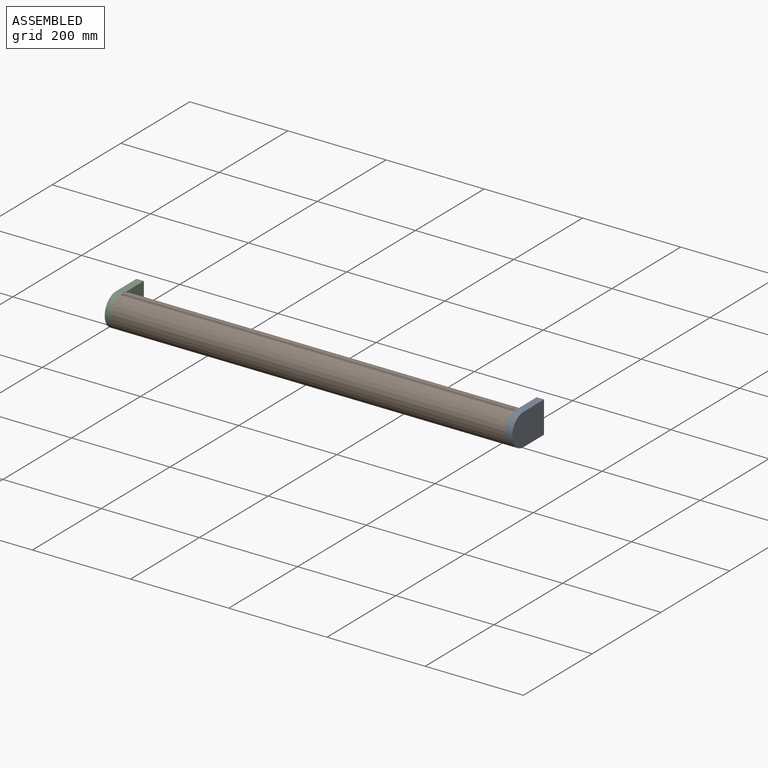
[diagram: assembled view]
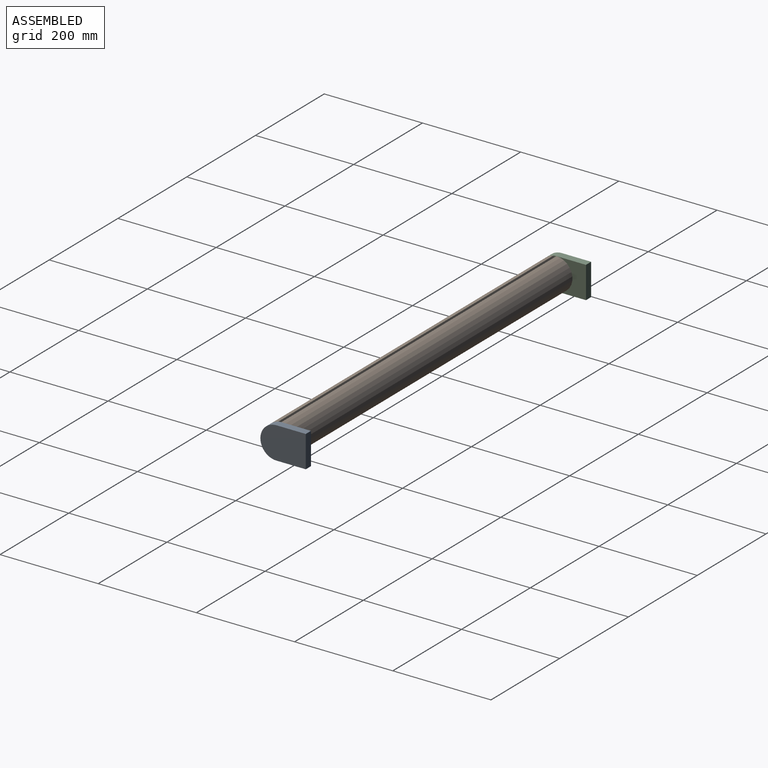
[diagram: assembled view, second angle]
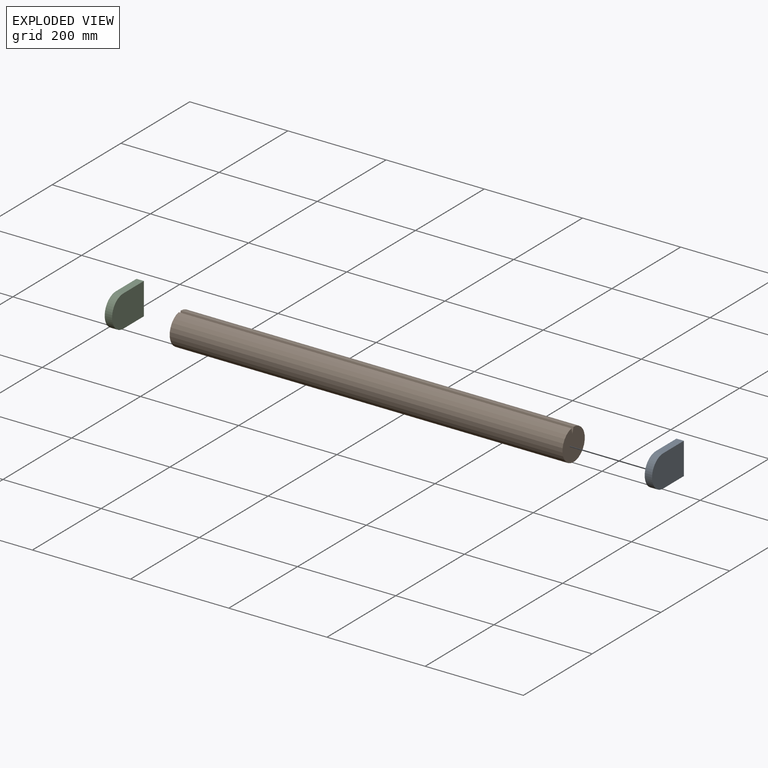
[diagram: exploded view]
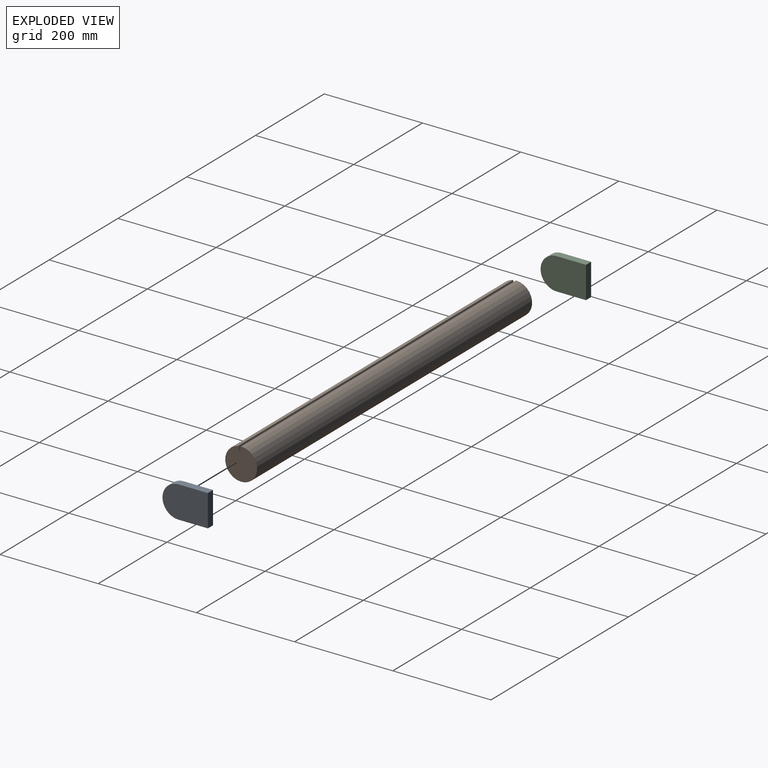
[diagram: exploded view, second angle]
ASSEMBLY  parts=3 mates=4
PART A: 6 faces, bbox 15x92.5x65 mm
  f0: plane 60x15mm, normal (0,0,1), area 900mm2, adj f1,f3,f4,f5
  f1: cylinder r=32.5mm len=65mm, axis (-1,0,0), area 1531.5mm2, adj f0,f2,f4,f5
  f2: plane 60x15mm, normal (0,0,-1), area 900mm2, adj f1,f3,f4,f5
  f3: plane 65x15mm, normal (0,1,0), area 975mm2, adj f0,f2,f4,f5
  f4: plane 92.5x65mm, normal (1,0,0), area 5559.2mm2, adj f0,f1,f2,f3
  f5: plane 92.5x65mm, normal (-1,0,0), area 5559.2mm2, adj f0,f1,f2,f3
PART B: 5 faces, bbox 800x65x65 mm
  f0: plane 800x10.19mm, normal (0,-0.86,0.51), area 9470.8mm2, adj f1,f2,f3,f4
  f1: plane 800x10.94mm, normal (0,1,0), area 8754.7mm2, adj f0,f2,f3,f4
  f2: cylinder r=32.5mm len=800mm, axis (-1,0,0), area 158499.1mm2, adj f0,f1,f3,f4
  f3: plane 65x65mm, normal (1,0,0), area 3284.8mm2, adj f0,f1,f2
  f4: plane 65x65mm, normal (-1,0,0), area 3284.8mm2, adj f0,f1,f2
PART C: same geometry as A
PLACE A t=(238.68,-19.44,-125.29)mm
PLACE B rot(axis=(1,0,0),12.9deg) t=(-561.32,-18.61,-125.35)mm
PLACE C t=(-576.32,-19.44,-125.29)mm fixed
MATE parallel C.f1 <-> B.f2  axis (1,0,0) through (-561.32,-19.64,-125.83)mm
MATE parallel B.f2 <-> A.f1  axis (1,0,0) through (238.68,-19.64,-125.83)mm
MATE cylindrical B.f2 <-> A.f1  axis (1,0,0) through (238.68,-19.64,-125.83)mm
MATE cylindrical C.f1 <-> B.f2  axis (1,0,0) through (-561.32,-19.64,-125.83)mm
